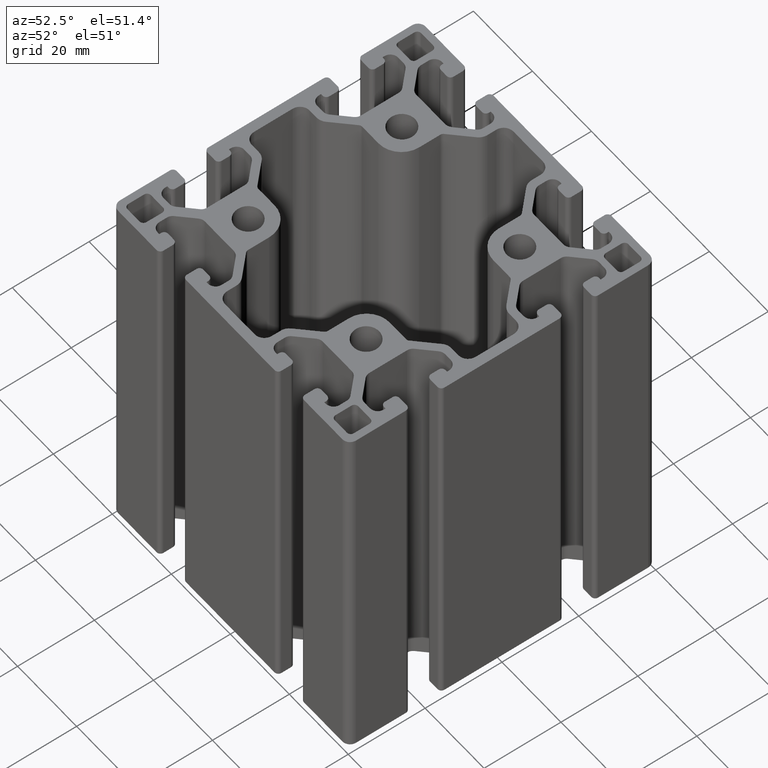
[diagram: clean part render]
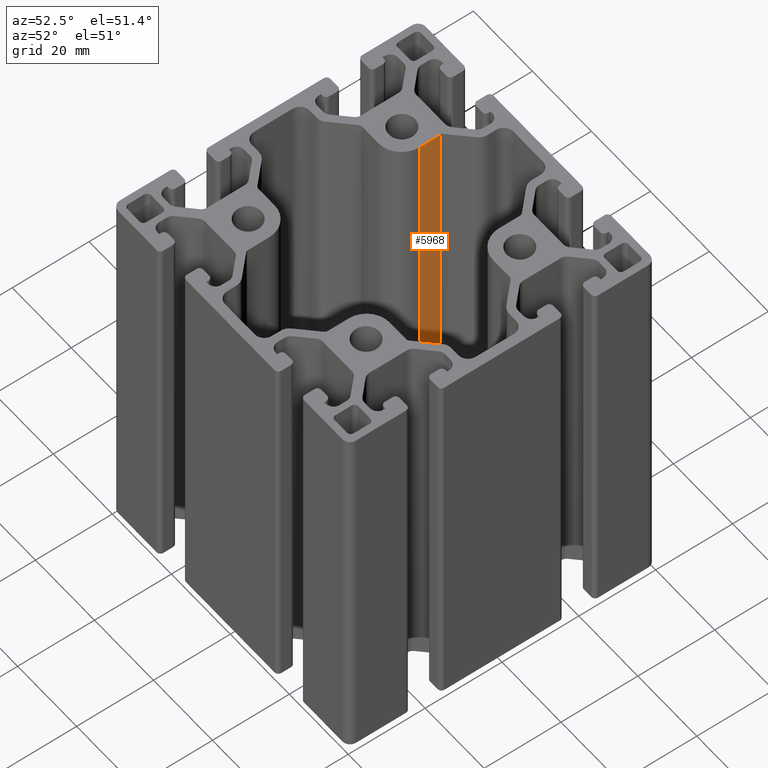
[diagram: same view with one face highlighted and labeled with its STEP entity id]
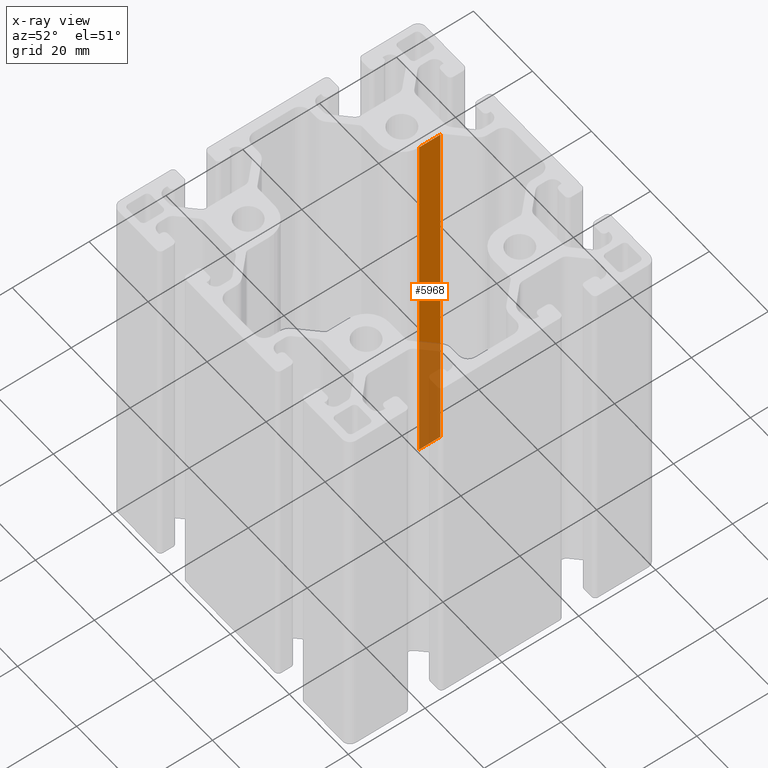
[diagram: x-ray of the same camera — body ghosted, the highlighted face saturated]
A machine part, auxiliary view. The second image highlights one B-rep face of the part: STEP entity #5968.
The next image is the same camera in x-ray: the body ghosted, the highlighted face saturated — about 33% of this face is hidden behind the body in this view.
In plain terms, the highlighted planar face has unit normal (-1, 0, 0).
Its self-contained STEP definition (entity closure, byte-faithful):
#66=PLANE('',#6340);
#258=FACE_OUTER_BOUND('',#568,.T.);
#568=EDGE_LOOP('',(#4157,#4158,#4159,#4160));
#958=LINE('',#9022,#1582);
#959=LINE('',#9025,#1583);
#960=LINE('',#9027,#1584);
#961=LINE('',#9028,#1585);
#1582=VECTOR('',#7184,100.);
#1583=VECTOR('',#7187,5.52512626584709);
#1584=VECTOR('',#7188,5.52512626584709);
#1585=VECTOR('',#7189,100.);
#2503=VERTEX_POINT('',#9018);
#2504=VERTEX_POINT('',#9020);
#2505=VERTEX_POINT('',#9024);
#2506=VERTEX_POINT('',#9026);
#3178=EDGE_CURVE('',#2504,#2503,#958,.T.);
#3179=EDGE_CURVE('',#2503,#2505,#959,.T.);
#3180=EDGE_CURVE('',#2506,#2504,#960,.T.);
#3181=EDGE_CURVE('',#2506,#2505,#961,.T.);
#4157=ORIENTED_EDGE('',*,*,#3179,.F.);
#4158=ORIENTED_EDGE('',*,*,#3178,.F.);
#4159=ORIENTED_EDGE('',*,*,#3180,.F.);
#4160=ORIENTED_EDGE('',*,*,#3181,.T.);
#5968=ADVANCED_FACE('',(#258),#66,.F.);
#6340=AXIS2_PLACEMENT_3D('',#9023,#7185,#7186);
#7184=DIRECTION('',(0.,0.,1.));
#7185=DIRECTION('center_axis',(-1.,4.01881503229299E-16,0.));
#7186=DIRECTION('ref_axis',(-3.5527136788005E-16,-1.,0.));
#7187=DIRECTION('',(4.01881503229299E-16,1.,0.));
#7188=DIRECTION('',(-4.01881503229299E-16,-1.,0.));
#7189=DIRECTION('',(0.,0.,1.));
#9018=CARTESIAN_POINT('',(-13.5,19.5,100.));
#9020=CARTESIAN_POINT('',(-13.5,19.5,0.));
#9022=CARTESIAN_POINT('',(-13.5,19.5,0.));
#9023=CARTESIAN_POINT('Origin',(-13.5,25.0251262658471,0.));
#9024=CARTESIAN_POINT('',(-13.5,25.0251262658471,100.));
#9025=CARTESIAN_POINT('',(-13.5,12.5125631329236,100.));
#9026=CARTESIAN_POINT('',(-13.5,25.0251262658471,0.));
#9027=CARTESIAN_POINT('',(-13.5,12.5125631329236,0.));
#9028=CARTESIAN_POINT('',(-13.5,25.0251262658471,0.));